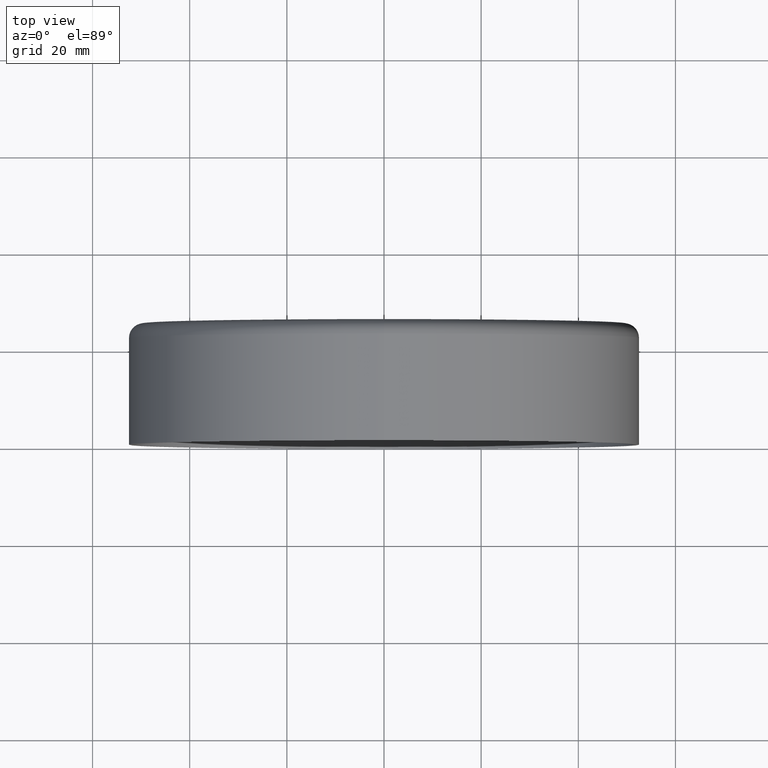
[diagram: clean part render]
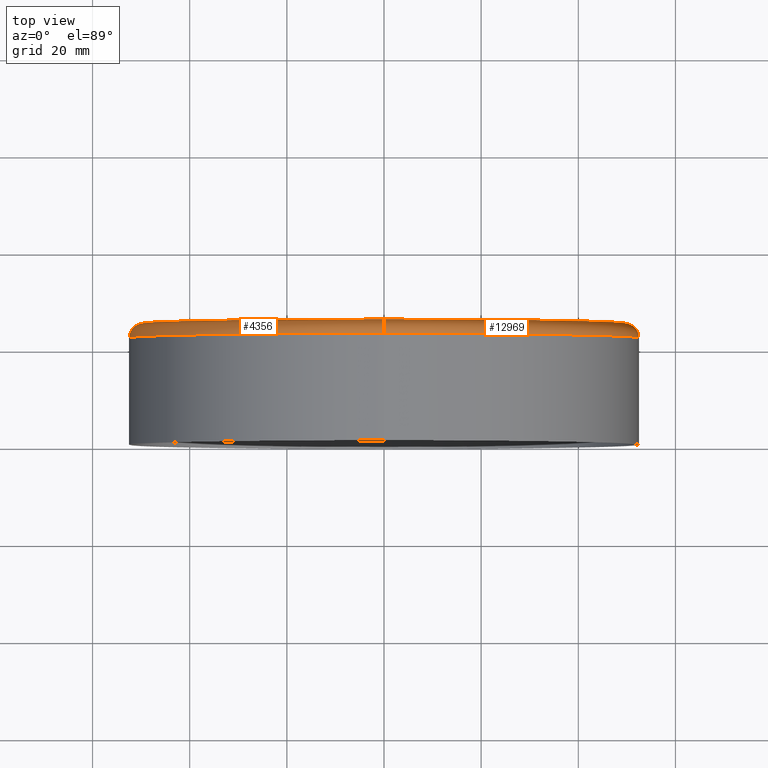
[diagram: same view with one multi-face feature highlighted, each face labeled with its STEP entity id]
A machine part, top view. The highlighted faces form ONE feature: a constant-radius fillet chain: 2 tangent blend faces with common blend radius 3 mm. The faces share edges in the B-rep.
Their STEP definitions:
[1] entity #12969 (Torus):
#80 = DIRECTION ( 'NONE',  ( -1.224646799147351975E-16, 0.000000000000000000, -1.000000000000000000 ) ) ;
#847 = AXIS2_PLACEMENT_3D ( 'NONE', #10191, #6820, #80 ) ;
#1065 = AXIS2_PLACEMENT_3D ( 'NONE', #4881, #12723, #6000 ) ;
#1498 = AXIS2_PLACEMENT_3D ( 'NONE', #1587, #3888, #13822 ) ;
#1587 = CARTESIAN_POINT ( 'NONE',  ( 0.000000000000000000, 22.00000000000000355, 0.000000000000000000 ) ) ;
#1667 = DIRECTION ( 'NONE',  ( -1.000000000000000000, 0.000000000000000000, 0.000000000000000000 ) ) ;
#2069 = EDGE_CURVE ( 'NONE', #5082, #4607, #5258, .T. ) ;
#2163 = EDGE_LOOP ( 'NONE', ( #6207, #7172, #10055, #10462 ) ) ;
#2200 = DIRECTION ( 'NONE',  ( 0.000000000000000000, 0.000000000000000000, -1.000000000000000000 ) ) ;
#2357 = CIRCLE ( 'NONE', #5728, 3.000000000000002665 ) ;
#3323 = CARTESIAN_POINT ( 'NONE',  ( 0.000000000000000000, 25.00000000000000000, 0.000000000000000000 ) ) ;
#3437 = CARTESIAN_POINT ( 'NONE',  ( 6.245698675651501233E-15, 25.00000000000000000, 49.50000000000000000 ) ) ;
#3888 = DIRECTION ( 'NONE',  ( -0.000000000000000000, -1.000000000000000000, -0.000000000000000000 ) ) ;
#4607 = VERTEX_POINT ( 'NONE', #4954 ) ;
#4881 = CARTESIAN_POINT ( 'NONE',  ( 0.000000000000000000, 22.00000000000000355, 0.000000000000000000 ) ) ;
#4954 = CARTESIAN_POINT ( 'NONE',  ( 6.429395695523604744E-15, 22.00000000000000355, 52.50000000000000711 ) ) ;
#4961 = DIRECTION ( 'NONE',  ( 0.000000000000000000, 0.000000000000000000, 1.000000000000000000 ) ) ;
#5082 = VERTEX_POINT ( 'NONE', #12366 ) ;
#5258 = CIRCLE ( 'NONE', #1065, 52.50000000000000711 ) ;
#5562 = VERTEX_POINT ( 'NONE', #3437 ) ;
#5728 = AXIS2_PLACEMENT_3D ( 'NONE', #8446, #1667, #4961 ) ;
#6000 = DIRECTION ( 'NONE',  ( 0.000000000000000000, 0.000000000000000000, -1.000000000000000000 ) ) ;
#6207 = ORIENTED_EDGE ( 'NONE', *, *, #10716, .T. ) ;
#6451 = FACE_OUTER_BOUND ( 'NONE', #2163, .T. ) ;
#6820 = DIRECTION ( 'NONE',  ( 1.000000000000000000, 0.000000000000000000, -1.224646799147353207E-16 ) ) ;
#6922 = VERTEX_POINT ( 'NONE', #10437 ) ;
#7172 = ORIENTED_EDGE ( 'NONE', *, *, #14608, .T. ) ;
#8281 = CIRCLE ( 'NONE', #9124, 49.50000000000000000 ) ;
#8446 = CARTESIAN_POINT ( 'NONE',  ( 0.000000000000000000, 22.00000000000000355, -49.50000000000000000 ) ) ;
#8943 = DIRECTION ( 'NONE',  ( -0.000000000000000000, -1.000000000000000000, -0.000000000000000000 ) ) ;
#9124 = AXIS2_PLACEMENT_3D ( 'NONE', #3323, #8943, #2200 ) ;
#10055 = ORIENTED_EDGE ( 'NONE', *, *, #2069, .F. ) ;
#10191 = CARTESIAN_POINT ( 'NONE',  ( 6.062001655779398511E-15, 22.00000000000000355, 49.50000000000000000 ) ) ;
#10437 = CARTESIAN_POINT ( 'NONE',  ( 0.000000000000000000, 25.00000000000000000, -49.50000000000000000 ) ) ;
#10462 = ORIENTED_EDGE ( 'NONE', *, *, #13745, .F. ) ;
#10716 = EDGE_CURVE ( 'NONE', #6922, #5562, #8281, .T. ) ;
#11028 = TOROIDAL_SURFACE ( 'NONE', #1498, 49.50000000000000000, 3.000000000000000888 ) ;
#12024 = CIRCLE ( 'NONE', #847, 3.000000000000002665 ) ;
#12366 = CARTESIAN_POINT ( 'NONE',  ( 0.000000000000000000, 22.00000000000000355, -52.50000000000000711 ) ) ;
#12723 = DIRECTION ( 'NONE',  ( -0.000000000000000000, -1.000000000000000000, -0.000000000000000000 ) ) ;
#12969 = ADVANCED_FACE ( 'NONE', ( #6451 ), #11028, .T. ) ;
#13745 = EDGE_CURVE ( 'NONE', #6922, #5082, #2357, .T. ) ;
#13822 = DIRECTION ( 'NONE',  ( 0.000000000000000000, 0.000000000000000000, -1.000000000000000000 ) ) ;
#14608 = EDGE_CURVE ( 'NONE', #5562, #4607, #12024, .T. ) ;
[2] entity #4356 (Torus):
#22 = DIRECTION ( 'NONE',  ( 0.000000000000000000, 0.000000000000000000, -1.000000000000000000 ) ) ;
#80 = DIRECTION ( 'NONE',  ( -1.224646799147351975E-16, 0.000000000000000000, -1.000000000000000000 ) ) ;
#324 = DIRECTION ( 'NONE',  ( -0.000000000000000000, -1.000000000000000000, -0.000000000000000000 ) ) ;
#847 = AXIS2_PLACEMENT_3D ( 'NONE', #10191, #6820, #80 ) ;
#1066 = DIRECTION ( 'NONE',  ( -0.000000000000000000, -1.000000000000000000, -0.000000000000000000 ) ) ;
#1667 = DIRECTION ( 'NONE',  ( -1.000000000000000000, 0.000000000000000000, 0.000000000000000000 ) ) ;
#2324 = ORIENTED_EDGE ( 'NONE', *, *, #6818, .F. ) ;
#2357 = CIRCLE ( 'NONE', #5728, 3.000000000000002665 ) ;
#3437 = CARTESIAN_POINT ( 'NONE',  ( 6.245698675651501233E-15, 25.00000000000000000, 49.50000000000000000 ) ) ;
#4158 = TOROIDAL_SURFACE ( 'NONE', #4666, 49.50000000000000000, 3.000000000000000888 ) ;
#4270 = ORIENTED_EDGE ( 'NONE', *, *, #14608, .F. ) ;
#4356 = ADVANCED_FACE ( 'NONE', ( #5230 ), #4158, .T. ) ;
#4607 = VERTEX_POINT ( 'NONE', #4954 ) ;
#4653 = CIRCLE ( 'NONE', #12598, 49.50000000000000000 ) ;
#4666 = AXIS2_PLACEMENT_3D ( 'NONE', #8359, #1066, #22 ) ;
#4954 = CARTESIAN_POINT ( 'NONE',  ( 6.429395695523604744E-15, 22.00000000000000355, 52.50000000000000711 ) ) ;
#4961 = DIRECTION ( 'NONE',  ( 0.000000000000000000, 0.000000000000000000, 1.000000000000000000 ) ) ;
#5082 = VERTEX_POINT ( 'NONE', #12366 ) ;
#5230 = FACE_OUTER_BOUND ( 'NONE', #12313, .T. ) ;
#5562 = VERTEX_POINT ( 'NONE', #3437 ) ;
#5728 = AXIS2_PLACEMENT_3D ( 'NONE', #8446, #1667, #4961 ) ;
#6305 = ORIENTED_EDGE ( 'NONE', *, *, #13745, .T. ) ;
#6818 = EDGE_CURVE ( 'NONE', #4607, #5082, #9241, .T. ) ;
#6820 = DIRECTION ( 'NONE',  ( 1.000000000000000000, 0.000000000000000000, -1.224646799147353207E-16 ) ) ;
#6922 = VERTEX_POINT ( 'NONE', #10437 ) ;
#8359 = CARTESIAN_POINT ( 'NONE',  ( 0.000000000000000000, 22.00000000000000355, 0.000000000000000000 ) ) ;
#8402 = CARTESIAN_POINT ( 'NONE',  ( 0.000000000000000000, 22.00000000000000355, 0.000000000000000000 ) ) ;
#8446 = CARTESIAN_POINT ( 'NONE',  ( 0.000000000000000000, 22.00000000000000355, -49.50000000000000000 ) ) ;
#8569 = DIRECTION ( 'NONE',  ( 0.000000000000000000, 0.000000000000000000, -1.000000000000000000 ) ) ;
#8615 = CARTESIAN_POINT ( 'NONE',  ( 0.000000000000000000, 25.00000000000000000, 0.000000000000000000 ) ) ;
#9241 = CIRCLE ( 'NONE', #9834, 52.50000000000000711 ) ;
#9834 = AXIS2_PLACEMENT_3D ( 'NONE', #8402, #324, #13996 ) ;
#10191 = CARTESIAN_POINT ( 'NONE',  ( 6.062001655779398511E-15, 22.00000000000000355, 49.50000000000000000 ) ) ;
#10437 = CARTESIAN_POINT ( 'NONE',  ( 0.000000000000000000, 25.00000000000000000, -49.50000000000000000 ) ) ;
#11800 = DIRECTION ( 'NONE',  ( -0.000000000000000000, -1.000000000000000000, -0.000000000000000000 ) ) ;
#12024 = CIRCLE ( 'NONE', #847, 3.000000000000002665 ) ;
#12313 = EDGE_LOOP ( 'NONE', ( #4270, #14465, #6305, #2324 ) ) ;
#12366 = CARTESIAN_POINT ( 'NONE',  ( 0.000000000000000000, 22.00000000000000355, -52.50000000000000711 ) ) ;
#12598 = AXIS2_PLACEMENT_3D ( 'NONE', #8615, #11800, #8569 ) ;
#13423 = EDGE_CURVE ( 'NONE', #5562, #6922, #4653, .T. ) ;
#13745 = EDGE_CURVE ( 'NONE', #6922, #5082, #2357, .T. ) ;
#13996 = DIRECTION ( 'NONE',  ( 0.000000000000000000, 0.000000000000000000, -1.000000000000000000 ) ) ;
#14465 = ORIENTED_EDGE ( 'NONE', *, *, #13423, .T. ) ;
#14608 = EDGE_CURVE ( 'NONE', #5562, #4607, #12024, .T. ) ;